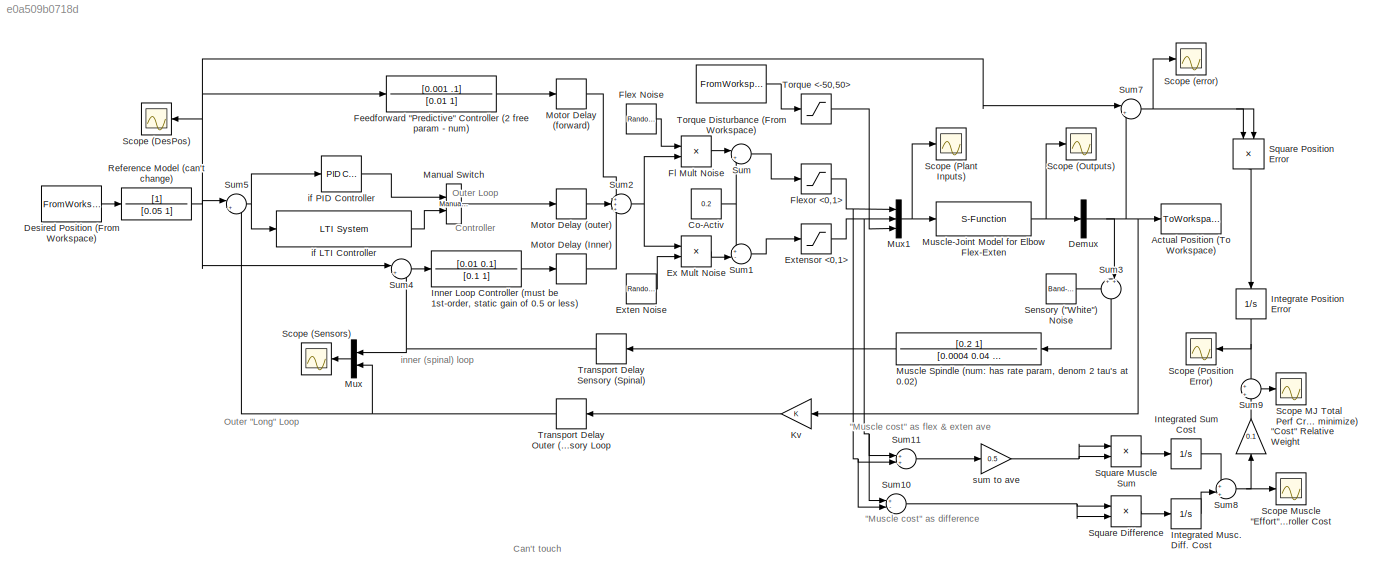
MODEL slx_e0a509b0718d
KIND model
CONFIG AbsTol = auto
CONFIG EnableMultiTasking = on
CONFIG FixedStep = 0.005
CONFIG MaxStep = auto
CONFIG MinStep = auto
CONFIG RelTol = 1e-3
CONFIG SampleTimeConstraint = Unconstrained
CONFIG Solver = ode3
CONFIG SolverName = ode3
CONFIG StartTime = 0.0
CONFIG StopTime = 20
BLOCK [Gain] "Cost" Relative Weight
  Gain = 0.1
  OutDataTypeStr = Inherit: Inherit via internal rule
  ParamDataTypeStr = Inherit: Inherit via internal rule
  SaturateOnIntegerOverflow = off
BLOCK [ToWorkspace] Actual Position (To Workspace)
  MaxDataPoints = inf
  Ports = [1]
  SampleTime = -1
  SaveFormat = Structure
  VariableName = ActPos
BLOCK [Constant] Co-Activ
  Value = 0.2
BLOCK [Demux] Demux
  DisplayOption = bar
  Outputs = 3
  Ports = [1, 3]
BLOCK [FromWorkspace] Desired Position (From Workspace)
  SampleTime = 0
  VariableName = DesPos
  ZeroCross = on
BLOCK [Product] Ex Mult Noise
  InputSameDT = off
  OutDataTypeStr = Inherit: Inherit via internal rule
  Ports = [2, 1]
  SaturateOnIntegerOverflow = off
BLOCK [RandomNumber] Exten Noise
  Mean = 1
  SampleTime = 0.005
  Variance = .00000001
BLOCK [Saturate] Extensor <0,1>
  InputPortMap = u0
  LowerLimit = 0
  Ports = [1, 1]
  UpperLimit = 1.0
BLOCK [TransferFcn] Feedforward "Predictive" Controller (2 free param - num) 
  Denominator = [0.01 1]
  Numerator = [0.001 .1]
BLOCK [Product] Fl Mult Noise
  InputSameDT = off
  OutDataTypeStr = Inherit: Inherit via internal rule
  Ports = [2, 1]
  SaturateOnIntegerOverflow = off
BLOCK [RandomNumber] Flex Noise
  Mean = 1
  SampleTime = 0.005
  Seed = 1
  Variance = .00000001
BLOCK [Saturate] Flexor <0,1>
  InputPortMap = u0
  LowerLimit = 0
  Ports = [1, 1]
  UpperLimit = 1.0
BLOCK [TransferFcn] Inner Loop Controller (must be 1st-order, static gain of 0.5 or less)
  Denominator = [0.1 1]
  Numerator = [0.01 0.1]
BLOCK [Integrator] Integrate Position Error
  Ports = [1, 1]
BLOCK [Integrator] Integrated Musc. Diff. Cost
  Ports = [1, 1]
BLOCK [Integrator] Integrated Sum Cost
  Ports = [1, 1]
BLOCK [Gain] Kv
  OutDataTypeStr = Inherit: Inherit via internal rule
  ParamDataTypeStr = Inherit: Inherit via internal rule
  SaturateOnIntegerOverflow = off
BLOCK [Reference] Manual Switch  REF=simulink/Signal
Routing/Manual
Variant Source
  Ports = [2, 1]
  SourceBlock = simulink/Signal\nRouting/Manual\nVariant Source
  SourceProductBaseCode = SL
  SourceProductName = Simulink
  SourceType = ManualVariantSource
BLOCK [TransportDelay] Motor Delay (Inner)
  DelayTime = .02
  Ports = [1, 1]
BLOCK [TransportDelay] Motor Delay (forward)
  DelayTime = .04
  Ports = [1, 1]
BLOCK [TransportDelay] Motor Delay (outer)
  DelayTime = .04
  Ports = [1, 1]
BLOCK [TransferFcn] Muscle Spindle (num: has rate param, denom 2 tau's at 0.02) 
  Denominator = [0.0004 0.04 1]
  Numerator = [0.2 1]
BLOCK [S-Function] Muscle-Joint Model for Elbow Flex-Exten
  EnableBusSupport = off
  FunctionName = mj_sim_elb_f17
  Ports = [1, 1]
  SFcnIsStateOwnerBlock = off
  SFunctionDeploymentMode = off
BLOCK [Mux] Mux
  DisplayOption = bar
  Inputs = 2
  Ports = [2, 1]
BLOCK [Mux] Mux1
  DisplayOption = bar
  Inputs = 3
  Ports = [3, 1]
BLOCK [TransferFcn] Reference Model (can't change)
  Denominator = [0.05 1]
BLOCK [Scope] Scope (DesPos)
  NumInputPorts = 1
  Ports = [1]
  ScopeSpecificationString = Simulink.scopes.TimeScopeBlockCfg('CurrentConfiguration', extmgr.ConfigurationSet(extmgr.Configuration('Core','General UI',true),extmgr.Configuration('Core','Source UI',true),extmgr.Configuration('Sources','WiredSimulink',true,'DataLoggingVariableName','ScopeData3','DataLoggingSaveFormat','StructureWithTime','DataLoggingLimitDataPoints',true,'DataLoggingDecimation','1','DataLoggingDecimateData',tr...<+1680ch>
BLOCK [Scope] Scope (Outputs)
  NumInputPorts = 1
  Ports = [1]
  ScopeSpecificationString = Simulink.scopes.TimeScopeBlockCfg('CurrentConfiguration', extmgr.ConfigurationSet(extmgr.Configuration('Core','General UI',true),extmgr.Configuration('Core','Source UI',true),extmgr.Configuration('Sources','WiredSimulink',true,'DataLogging',true,'DataLoggingVariableName','MuscData1','DataLoggingSaveFormat','StructureWithTime','DataLoggingDecimation','1','DataLoggingDecimateData',true),extmgr.Confi...<+1812ch>
BLOCK [Scope] Scope (Plant Inputs)
  NumInputPorts = 1
  Ports = [1]
  ScopeSpecificationString = Simulink.scopes.TimeScopeBlockCfg('CurrentConfiguration', extmgr.ConfigurationSet(extmgr.Configuration('Core','General UI',true),extmgr.Configuration('Core','Source UI',true),extmgr.Configuration('Sources','WiredSimulink',true,'DataLoggingVariableName','ScopeData5','DataLoggingSaveFormat','StructureWithTime','DataLoggingLimitDataPoints',true,'DataLoggingDecimation','1','DataLoggingDecimateData',tr...<+1766ch>
BLOCK [Scope] Scope (Position Error)
  NumInputPorts = 1
  Ports = [1]
  ScopeSpecificationString = Simulink.scopes.TimeScopeBlockCfg('CurrentConfiguration', extmgr.ConfigurationSet(extmgr.Configuration('Core','General UI',true),extmgr.Configuration('Core','Source UI',true),extmgr.Configuration('Sources','WiredSimulink',true,'DataLoggingVariableName','ScopeData1','DataLoggingSaveFormat','StructureWithTime','DataLoggingLimitDataPoints',true,'DataLoggingDecimation','1','DataLoggingDecimateData',tr...<+1726ch>
BLOCK [Scope] Scope (Sensors)
  NumInputPorts = 1
  Ports = [1]
  ScopeSpecificationString = Simulink.scopes.TimeScopeBlockCfg('CurrentConfiguration', extmgr.ConfigurationSet(extmgr.Configuration('Core','General UI',true),extmgr.Configuration('Core','Source UI',true),extmgr.Configuration('Sources','WiredSimulink',true,'DataLoggingSaveFormat','StructureWithTime','DataLoggingLimitDataPoints',true,'DataLoggingDecimation','1','DataLoggingDecimateData',true),extmgr.Configuration('Visuals','Tim...<+1714ch>
BLOCK [Scope] Scope (error)
  NumInputPorts = 1
  Ports = [1]
  ScopeSpecificationString = Simulink.scopes.TimeScopeBlockCfg('CurrentConfiguration', extmgr.ConfigurationSet(extmgr.Configuration('Core','General UI',true),extmgr.Configuration('Core','Source UI',true),extmgr.Configuration('Sources','WiredSimulink',true,'DataLoggingVariableName','ScopeData1','DataLoggingSaveFormat','StructureWithTime','DataLoggingLimitDataPoints',true,'DataLoggingDecimation','1','DataLoggingDecimateData',tr...<+1678ch>
BLOCK [Scope] Scope MJ Total Perf Crit (try to minimize)
  NumInputPorts = 1
  Ports = [1]
  ScopeSpecificationString = Simulink.scopes.TimeScopeBlockCfg('CurrentConfiguration', extmgr.ConfigurationSet(extmgr.Configuration('Core','General UI',true),extmgr.Configuration('Core','Source UI',true),extmgr.Configuration('Sources','WiredSimulink',true,'DataLoggingVariableName','ScopeData4','DataLoggingSaveFormat','StructureWithTime','DataLoggingMaxPoints','7000','DataLoggingLimitDataPoints',true,'DataLoggingDecimation','1...<+1808ch>
BLOCK [Scope] Scope Muscle "Effort" Controller Cost
  NumInputPorts = 1
  Ports = [1]
  ScopeSpecificationString = Simulink.scopes.TimeScopeBlockCfg('CurrentConfiguration', extmgr.ConfigurationSet(extmgr.Configuration('Core','General UI',true),extmgr.Configuration('Core','Source UI',true),extmgr.Configuration('Sources','WiredSimulink',true,'DataLoggingVariableName','ScopeData2','DataLoggingSaveFormat','StructureWithTime','DataLoggingMaxPoints','7000','DataLoggingLimitDataPoints',true,'DataLoggingDecimation','1...<+1760ch>
BLOCK [Reference] Sensory ("White") Noise  REF=simulink/Sources/Band-Limited
White Noise
  Ports = [0, 1]
  SourceBlock = simulink/Sources/Band-Limited\nWhite Noise
  SourceProductBaseCode = SL
  SourceProductName = Simulink
  SourceType = Band-Limited White Noise.
BLOCK [Product] Square Difference
  InputSameDT = off
  OutDataTypeStr = Inherit: Inherit via internal rule
  Ports = [2, 1]
  SaturateOnIntegerOverflow = off
BLOCK [Product] Square Muscle Sum
  InputSameDT = off
  OutDataTypeStr = Inherit: Inherit via internal rule
  Ports = [2, 1]
  SaturateOnIntegerOverflow = off
BLOCK [Product] Square Position Error
  InputSameDT = off
  OutDataTypeStr = Inherit: Inherit via internal rule
  Ports = [2, 1]
  SaturateOnIntegerOverflow = off
BLOCK [Sum] Sum
  IconShape = round
  InputSameDT = off
  Inputs = |++
  OutDataTypeStr = Inherit: Inherit via internal rule
  Ports = [2, 1]
  SaturateOnIntegerOverflow = off
BLOCK [Sum] Sum1
  IconShape = round
  InputSameDT = off
  Inputs = +-|
  OutDataTypeStr = Inherit: Inherit via internal rule
  Ports = [2, 1]
  SaturateOnIntegerOverflow = off
BLOCK [Sum] Sum10
  IconShape = round
  InputSameDT = off
  Inputs = +-|
  OutDataTypeStr = Inherit: Inherit via internal rule
  Ports = [2, 1]
  SaturateOnIntegerOverflow = off
BLOCK [Sum] Sum11
  IconShape = round
  InputSameDT = off
  Inputs = ++|
  OutDataTypeStr = Inherit: Inherit via internal rule
  Ports = [2, 1]
  SaturateOnIntegerOverflow = off
BLOCK [Sum] Sum2
  IconShape = round
  InputSameDT = off
  Inputs = +++
  OutDataTypeStr = Inherit: Inherit via internal rule
  Ports = [3, 1]
  SaturateOnIntegerOverflow = off
BLOCK [Sum] Sum3
  IconShape = round
  InputSameDT = off
  Inputs = ++|
  OutDataTypeStr = Inherit: Inherit via internal rule
  Ports = [2, 1]
  SaturateOnIntegerOverflow = off
BLOCK [Sum] Sum4
  IconShape = round
  InputSameDT = off
  Inputs = |+-
  OutDataTypeStr = Inherit: Inherit via internal rule
  Ports = [2, 1]
  SaturateOnIntegerOverflow = off
BLOCK [Sum] Sum5
  IconShape = round
  InputSameDT = off
  Inputs = |+-
  OutDataTypeStr = Inherit: Inherit via internal rule
  Ports = [2, 1]
  SaturateOnIntegerOverflow = off
BLOCK [Sum] Sum7
  IconShape = round
  InputSameDT = off
  Inputs = |+-
  OutDataTypeStr = Inherit: Inherit via internal rule
  Ports = [2, 1]
  SaturateOnIntegerOverflow = off
BLOCK [Sum] Sum8
  IconShape = round
  InputSameDT = off
  Inputs = +|+
  OutDataTypeStr = Inherit: Inherit via internal rule
  Ports = [2, 1]
  SaturateOnIntegerOverflow = off
BLOCK [Sum] Sum9
  IconShape = round
  InputSameDT = off
  Inputs = +|+
  OutDataTypeStr = Inherit: Inherit via internal rule
  Ports = [2, 1]
  SaturateOnIntegerOverflow = off
BLOCK [Saturate] Torque <-50,50>
  InputPortMap = u0
  LowerLimit = -50
  Ports = [1, 1]
  UpperLimit = 50
BLOCK [FromWorkspace] Torque Disturbance (From Workspace)
  SampleTime = 0
  VariableName = TorqueDist
  ZeroCross = on
BLOCK [TransportDelay] Transport Delay Outer (Brain) Sensory Loop
  DelayTime = 0.05
  Ports = [1, 1]
BLOCK [TransportDelay] Transport Delay Sensory (Spinal)
  DelayTime = 0.02
  Ports = [1, 1]
BLOCK [Reference] if LTI Controller   REF=cstblocks/LTI System
  Ports = [1, 1]
  SourceBlock = cstblocks/LTI System
  SourceProductBaseCode = CT
  SourceProductName = Control System Toolbox
  SourceType = LTI Block
BLOCK [Reference] if PID Controller  REF=simulink/Continuous/PID Controller
  Ports = [1, 1]
  SourceBlock = simulink/Continuous/PID Controller
  SourceProductBaseCode = SL
  SourceProductName = Simulink
  SourceType = PID 1dof
BLOCK [Gain] sum to ave
  Gain = 0.5
  OutDataTypeStr = Inherit: Inherit via internal rule
  ParamDataTypeStr = Inherit: Inherit via internal rule
  SaturateOnIntegerOverflow = off
ANNOTATION (root): "Muscle cost" as difference
ANNOTATION (root): "Muscle cost" as flex & exten ave
ANNOTATION (root): Can't touch
ANNOTATION (root): Outer "Long" Loop
ANNOTATION (root): Outer Loop Controller
ANNOTATION (root): inner (spinal) loop
LINE "Cost" Relative Weight:1 -> Sum9:2
NET Co-Activ:1 -> Sum1:1, Sum:2
NET Demux:2 -> Actual Position (To Workspace):1, Kv:1, Sum3:2, Sum7:2
LINE Desired Position (From Workspace):1 -> Reference Model (can't change):1
LINE Ex Mult Noise:1 -> Sum1:2
LINE Exten Noise:1 -> Ex Mult Noise:2
NET Extensor <0,1>:1 -> Mux1:2, Sum10:1, Sum11:1
LINE Feedforward "Predictive" Controller (2 free param - num) :1 -> Motor Delay (forward):1
LINE Fl Mult Noise:1 -> Sum:1
LINE Flex Noise:1 -> Fl Mult Noise:1
NET Flexor <0,1>:1 -> Mux1:1, Sum10:2, Sum11:2
LINE Inner Loop Controller (must be 1st-order, static gain of 0.5 or less):1 -> Motor Delay (Inner):1
NET Integrate Position Error:1 -> Scope (Position Error):1, Sum9:1
LINE Integrated Musc. Diff. Cost:1 -> Sum8:2
LINE Integrated Sum Cost:1 -> Sum8:1
LINE Kv:1 -> Transport Delay Outer (Brain) Sensory Loop:1
LINE Manual Switch:1 -> Motor Delay (outer):1
LINE Motor Delay (Inner):1 -> Sum2:3
LINE Motor Delay (forward):1 -> Sum2:1
LINE Motor Delay (outer):1 -> Sum2:2
LINE Muscle Spindle (num: has rate param, denom 2 tau's at 0.02) :1 -> Transport Delay Sensory (Spinal):1
NET Muscle-Joint Model for Elbow Flex-Exten:1 -> Demux:1, Scope (Outputs):1
NET Mux1:1 -> Muscle-Joint Model for Elbow Flex-Exten:1, Scope (Plant Inputs):1
LINE Mux:1 -> Scope (Sensors):1
NET Reference Model (can't change):1 -> Feedforward "Predictive" Controller (2 free param - num) :1, Scope (DesPos):1, Sum4:1, Sum5:1, Sum7:1
LINE Sensory ("White") Noise:1 -> Sum3:1
LINE Square Difference:1 -> Integrated Musc. Diff. Cost:1
LINE Square Muscle Sum:1 -> Integrated Sum Cost:1
LINE Square Position Error:1 -> Integrate Position Error:1
NET Sum10:1 -> Square Difference:1, Square Difference:2
LINE Sum11:1 -> sum to ave:1
LINE Sum1:1 -> Extensor <0,1>:1
NET Sum2:1 -> Ex Mult Noise:1, Fl Mult Noise:2
LINE Sum3:1 -> Muscle Spindle (num: has rate param, denom 2 tau's at 0.02) :1
LINE Sum4:1 -> Inner Loop Controller (must be 1st-order, static gain of 0.5 or less):1
NET Sum5:1 -> if LTI Controller :1, if PID Controller:1
NET Sum7:1 -> Scope (error):1, Square Position Error:1, Square Position Error:2
NET Sum8:1 -> "Cost" Relative Weight:1, Scope Muscle "Effort" Controller Cost:1
LINE Sum9:1 -> Scope MJ Total Perf Crit (try to minimize):1
LINE Sum:1 -> Flexor <0,1>:1
LINE Torque <-50,50>:1 -> Mux1:3
LINE Torque Disturbance (From Workspace):1 -> Torque <-50,50>:1
NET Transport Delay Outer (Brain) Sensory Loop:1 -> Mux:2, Sum5:2
NET Transport Delay Sensory (Spinal):1 -> Mux:1, Sum4:2
LINE if LTI Controller :1 -> Manual Switch:2
LINE if PID Controller:1 -> Manual Switch:1
NET sum to ave:1 -> Square Muscle Sum:1, Square Muscle Sum:2
note: NET lines group one-source signal fan-out (src -> all destinations, sorted); 1:1 wires keep LINE
